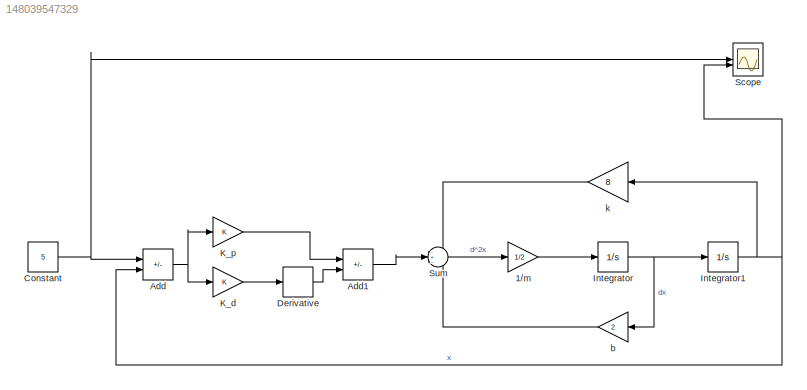
MODEL slx_148039547329
KIND model
CONFIG AbsTol = auto
CONFIG EnableMultiTasking = off
CONFIG FixedStep = auto
CONFIG MaxStep = auto
CONFIG MinStep = auto
CONFIG RelTol = 1e-3
CONFIG SampleTimeConstraint = Unconstrained
CONFIG SolverName = VariableStepAuto
CONFIG StartTime = 0.0
CONFIG StopTime = 100
BLOCK [Gain] 1//m
  Gain = 1/2
BLOCK [Sum] Add
  IconShape = rectangular
  Inputs = +-
BLOCK [Sum] Add1
  IconShape = rectangular
  Inputs = --
BLOCK [Constant] Constant
  Value = 5
BLOCK [Derivative] Derivative
BLOCK [Integrator] Integrator
BLOCK [Integrator] Integrator1
BLOCK [Gain] K_d
BLOCK [Gain] K_p
BLOCK [Scope] Scope
  Floating = off
  NumInputPorts = 2
  ScopeSpecificationString = Simulink.scopes.TimeScopeBlockCfg('CurrentConfiguration', extmgr.ConfigurationSet(extmgr.Configuration('Core','General UI',true),extmgr.Configuration('Core','Source UI',true),extmgr.Configuration('Sources','WiredSimulink',true),extmgr.Configuration('Visuals','Time Domain',true,'SerializedDisplays',{struct('MinYLimReal','-1920880859844767464736948224.00000','MaxYLimReal','-2736806780969810600656896...<+1611ch>
BLOCK [Sum] Sum
  Inputs = -+-
BLOCK [Gain] b
  Gain = 2
BLOCK [Gain] k
  Gain = 8
LINE 1//m:1 -> Integrator:1
LINE Add1:1 -> Sum:2
NET Add:1 -> K_d:1, K_p:1
NET Constant:1 -> Add:1, Scope:1
LINE Derivative:1 -> Add1:2
NET Integrator1:1 -> Add:2, Scope:2, k:1
NET Integrator:1 -> Integrator1:1, b:1
LINE K_d:1 -> Derivative:1
LINE K_p:1 -> Add1:1
LINE Sum:1 -> 1//m:1
LINE b:1 -> Sum:3
LINE k:1 -> Sum:1
note: NET lines group one-source signal fan-out (src -> all destinations, sorted); 1:1 wires keep LINE
